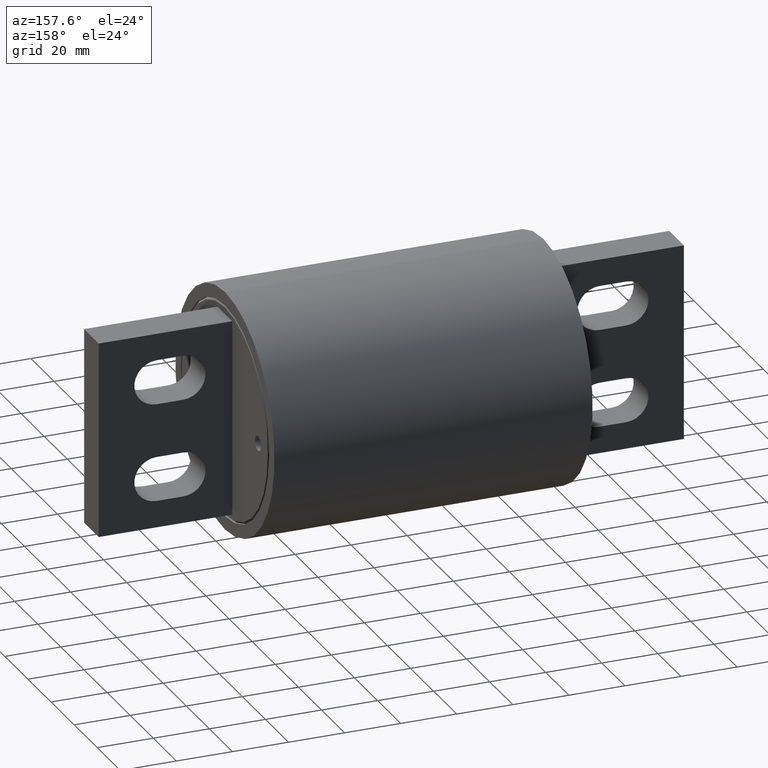
[diagram: clean part render]
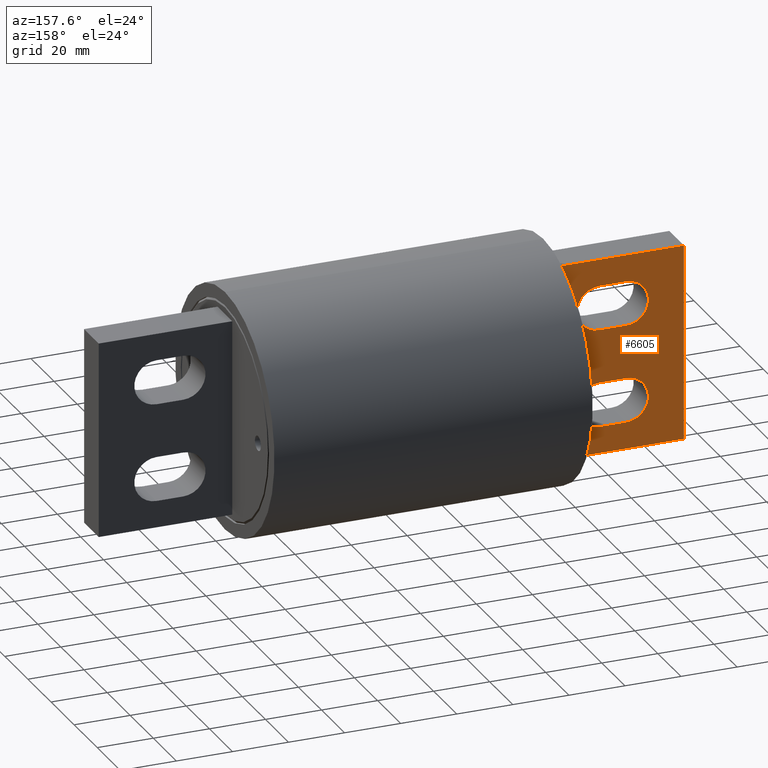
[diagram: same view with one face highlighted and labeled with its STEP entity id]
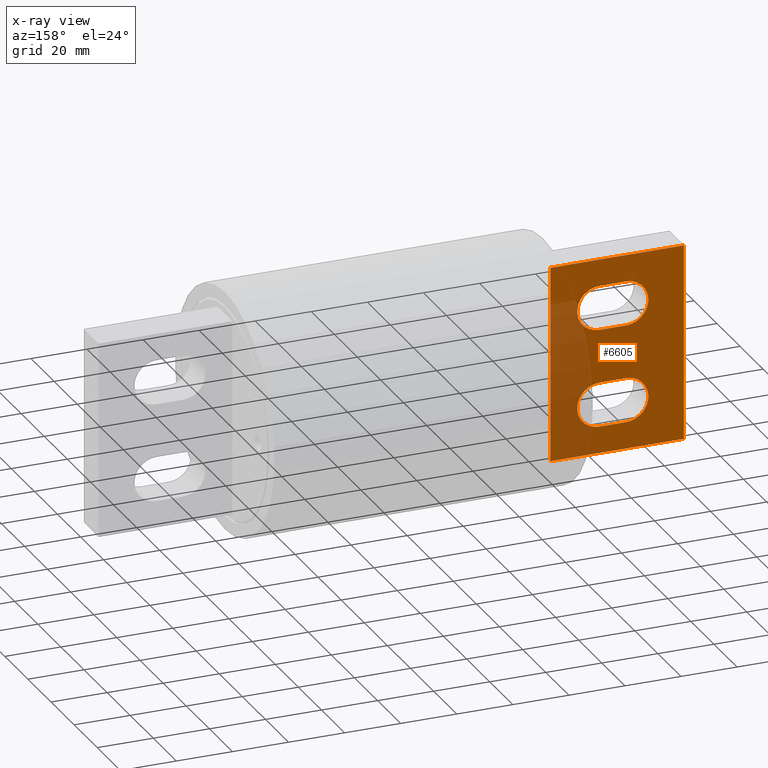
[diagram: x-ray of the same camera — body ghosted, the highlighted face saturated]
A machine part, auxiliary view. The second image highlights one B-rep face of the part: STEP entity #6605.
The next image is the same camera in x-ray: the body ghosted, the highlighted face saturated — about 26% of this face is hidden behind the body in this view.
In plain terms, the highlighted planar face has unit normal (-0, 1, 0).
Its self-contained STEP definition (entity closure, byte-faithful):
#44 = CARTESIAN_POINT ( 'NONE',  ( -2.922499999999998100, 0.2499999999999999200, 0.9999999999999992200 ) ) ;
#532 = DIRECTION ( 'NONE',  ( 7.360183935079494200E-017, -1.000000000000000000, -5.520159270106857000E-017 ) ) ;
#618 = ORIENTED_EDGE ( 'NONE', *, *, #1096, .T. ) ;
#1021 = CARTESIAN_POINT ( 'NONE',  ( -2.922499999999998100, 0.2499999999999999700, 0.6874999999999991100 ) ) ;
#1068 = CARTESIAN_POINT ( 'NONE',  ( -3.297499999999999400, 0.2500000000000001100, -0.6874999999999998900 ) ) ;
#1096 = EDGE_CURVE ( 'NONE', #7679, #12329, #7886, .T. ) ;
#1551 = VECTOR ( 'NONE', #13475, 39.37007874015748100 ) ;
#1594 = DIRECTION ( 'NONE',  ( 7.360183935079494200E-017, -1.000000000000000000, -5.520159270106857000E-017 ) ) ;
#1689 = CARTESIAN_POINT ( 'NONE',  ( -2.922499999999998100, 0.2499999999999999700, 0.3749999999999997800 ) ) ;
#1734 = ORIENTED_EDGE ( 'NONE', *, *, #8841, .T. ) ;
#1798 = AXIS2_PLACEMENT_3D ( 'NONE', #1068, #8775, #4246 ) ;
#1814 = DIRECTION ( 'NONE',  ( -8.790956814906570500E-017, 5.582070976144707800E-017, -1.000000000000000000 ) ) ;
#1819 = ORIENTED_EDGE ( 'NONE', *, *, #11486, .F. ) ;
#2226 = DIRECTION ( 'NONE',  ( -7.360183935079494200E-017, 1.000000000000000000, 5.582070976144709000E-017 ) ) ;
#2277 = VECTOR ( 'NONE', #12730, 39.37007874015748100 ) ;
#2658 = CARTESIAN_POINT ( 'NONE',  ( -2.922499999999998100, 0.2500000000000000600, -0.3749999999999995000 ) ) ;
#2750 = EDGE_CURVE ( 'NONE', #8360, #5628, #8156, .T. ) ;
#2774 = LINE ( 'NONE', #11304, #5850 ) ;
#2871 = CARTESIAN_POINT ( 'NONE',  ( -2.922499999999999400, 0.2500000000000000600, -0.9999999999999994400 ) ) ;
#2880 = VERTEX_POINT ( 'NONE', #6542 ) ;
#3252 = ORIENTED_EDGE ( 'NONE', *, *, #5344, .T. ) ;
#3484 = AXIS2_PLACEMENT_3D ( 'NONE', #11917, #1594, #8288 ) ;
#3885 = CARTESIAN_POINT ( 'NONE',  ( -2.922499999999998100, 0.2499999999999999200, 0.9999999999999992200 ) ) ;
#4175 = CIRCLE ( 'NONE', #7429, 0.3124999999999998300 ) ;
#4246 = DIRECTION ( 'NONE',  ( 0.0000000000000000000, -1.092739197465706400E-016, 1.000000000000000000 ) ) ;
#4419 = CARTESIAN_POINT ( 'NONE',  ( -3.297499999999998500, 0.2500000000000000600, 0.3749999999999996100 ) ) ;
#4558 = ORIENTED_EDGE ( 'NONE', *, *, #2750, .F. ) ;
#4561 = VECTOR ( 'NONE', #8090, 39.37007874015748100 ) ;
#4571 = AXIS2_PLACEMENT_3D ( 'NONE', #8568, #2226, #1814 ) ;
#4675 = CARTESIAN_POINT ( 'NONE',  ( -2.922499999999999400, 0.2500000000000000600, -0.6874999999999994400 ) ) ;
#4841 = EDGE_CURVE ( 'NONE', #9212, #2880, #10613, .T. ) ;
#4894 = VECTOR ( 'NONE', #5774, 39.37007874015748100 ) ;
#5084 = CARTESIAN_POINT ( 'NONE',  ( -3.297499999999999400, 0.2500000000000001100, -0.9999999999999998900 ) ) ;
#5288 = EDGE_CURVE ( 'NONE', #13664, #13404, #13290, .T. ) ;
#5344 = EDGE_CURVE ( 'NONE', #13404, #7679, #12941, .T. ) ;
#5417 = ORIENTED_EDGE ( 'NONE', *, *, #7838, .T. ) ;
#5425 = DIRECTION ( 'NONE',  ( 1.000000000000000000, -4.999400589604231500E-017, -5.701171636707238200E-016 ) ) ;
#5534 = CARTESIAN_POINT ( 'NONE',  ( -4.109499999999999700, 0.2500000000000000600, -1.374999999999998900 ) ) ;
#5628 = VERTEX_POINT ( 'NONE', #7086 ) ;
#5770 = LINE ( 'NONE', #2658, #4561 ) ;
#5774 = DIRECTION ( 'NONE',  ( 1.000000000000000000, -4.999400589604233900E-017, 8.552635480869926800E-017 ) ) ;
#5850 = VECTOR ( 'NONE', #13540, 39.37007874015748100 ) ;
#5926 = CARTESIAN_POINT ( 'NONE',  ( -4.109499999999997000, 0.2499999999999998900, 1.374999999999998200 ) ) ;
#5989 = EDGE_CURVE ( 'NONE', #10641, #9212, #12739, .T. ) ;
#6299 = EDGE_LOOP ( 'NONE', ( #8447, #4558, #1819, #8799 ) ) ;
#6322 = EDGE_CURVE ( 'NONE', #2880, #6853, #4175, .T. ) ;
#6463 = EDGE_LOOP ( 'NONE', ( #10374, #1734, #12357, #10643 ) ) ;
#6542 = CARTESIAN_POINT ( 'NONE',  ( -2.922499999999999400, 0.2500000000000000600, -0.9999999999999994400 ) ) ;
#6605 = ADVANCED_FACE ( 'NONE', ( #9786, #11353, #13400 ), #9521, .T. ) ;
#6853 = VERTEX_POINT ( 'NONE', #9145 ) ;
#7086 = CARTESIAN_POINT ( 'NONE',  ( -2.234499999999999700, 0.2500000000000000600, -1.374999999999998700 ) ) ;
#7111 = CARTESIAN_POINT ( 'NONE',  ( -2.234499999999999700, 0.2500000000000000600, -1.374999999999998700 ) ) ;
#7429 = AXIS2_PLACEMENT_3D ( 'NONE', #4675, #532, #11724 ) ;
#7679 = VERTEX_POINT ( 'NONE', #4419 ) ;
#7838 = EDGE_CURVE ( 'NONE', #12329, #13664, #12073, .T. ) ;
#7886 = LINE ( 'NONE', #1689, #13827 ) ;
#8090 = DIRECTION ( 'NONE',  ( -1.000000000000000000, 4.999400589604233900E-017, -1.583756346397462300E-016 ) ) ;
#8156 = LINE ( 'NONE', #7111, #4894 ) ;
#8164 = DIRECTION ( 'NONE',  ( 1.143035889327110600E-017, 5.582070976144709000E-017, -1.000000000000000000 ) ) ;
#8279 = CARTESIAN_POINT ( 'NONE',  ( -2.922499999999998100, 0.2499999999999999700, 0.3749999999999997800 ) ) ;
#8288 = DIRECTION ( 'NONE',  ( 0.0000000000000000000, 1.092739197465706400E-016, -1.000000000000000000 ) ) ;
#8301 = EDGE_CURVE ( 'NONE', #13778, #8755, #2774, .T. ) ;
#8343 = ORIENTED_EDGE ( 'NONE', *, *, #5288, .T. ) ;
#8360 = VERTEX_POINT ( 'NONE', #5534 ) ;
#8447 = ORIENTED_EDGE ( 'NONE', *, *, #10254, .F. ) ;
#8523 = AXIS2_PLACEMENT_3D ( 'NONE', #1021, #11205, #9848 ) ;
#8568 = CARTESIAN_POINT ( 'NONE',  ( -2.234499999999999700, 0.2500000000000000000, -2.593844011911592900E-016 ) ) ;
#8755 = VERTEX_POINT ( 'NONE', #5926 ) ;
#8775 = DIRECTION ( 'NONE',  ( 7.360183935079494200E-017, -1.000000000000000000, -5.520159270106857000E-017 ) ) ;
#8799 = ORIENTED_EDGE ( 'NONE', *, *, #8301, .F. ) ;
#8841 = EDGE_CURVE ( 'NONE', #6853, #10641, #5770, .T. ) ;
#9079 = CARTESIAN_POINT ( 'NONE',  ( -2.234499999999999300, 0.2499999999999999200, 1.374999999999998000 ) ) ;
#9145 = CARTESIAN_POINT ( 'NONE',  ( -2.922499999999998100, 0.2500000000000000600, -0.3749999999999995000 ) ) ;
#9212 = VERTEX_POINT ( 'NONE', #5084 ) ;
#9521 = PLANE ( 'NONE',  #4571 ) ;
#9582 = EDGE_LOOP ( 'NONE', ( #5417, #8343, #3252, #618 ) ) ;
#9786 = FACE_BOUND ( 'NONE', #9582, .T. ) ;
#9848 = DIRECTION ( 'NONE',  ( 0.0000000000000000000, 1.092739197465705900E-016, -1.000000000000000000 ) ) ;
#10254 = EDGE_CURVE ( 'NONE', #5628, #13778, #10471, .T. ) ;
#10374 = ORIENTED_EDGE ( 'NONE', *, *, #6322, .T. ) ;
#10405 = CARTESIAN_POINT ( 'NONE',  ( -4.109499999999997000, 0.2499999999999998900, 1.374999999999998200 ) ) ;
#10471 = LINE ( 'NONE', #9079, #1551 ) ;
#10613 = LINE ( 'NONE', #2871, #13163 ) ;
#10626 = CARTESIAN_POINT ( 'NONE',  ( -3.297499999999998500, 0.2500000000000001100, -0.3749999999999997800 ) ) ;
#10641 = VERTEX_POINT ( 'NONE', #10626 ) ;
#10643 = ORIENTED_EDGE ( 'NONE', *, *, #4841, .T. ) ;
#10844 = CARTESIAN_POINT ( 'NONE',  ( -3.297499999999998500, 0.2500000000000000000, 0.9999999999999984500 ) ) ;
#11205 = DIRECTION ( 'NONE',  ( 7.360183935079494200E-017, -1.000000000000000000, -5.520159270106857000E-017 ) ) ;
#11240 = VECTOR ( 'NONE', #8164, 39.37007874015748100 ) ;
#11304 = CARTESIAN_POINT ( 'NONE',  ( -2.234499999999999300, 0.2499999999999999200, 1.374999999999998000 ) ) ;
#11353 = FACE_BOUND ( 'NONE', #6463, .T. ) ;
#11486 = EDGE_CURVE ( 'NONE', #8755, #8360, #12064, .T. ) ;
#11708 = CARTESIAN_POINT ( 'NONE',  ( -2.234499999999999300, 0.2499999999999999200, 1.374999999999998000 ) ) ;
#11724 = DIRECTION ( 'NONE',  ( 0.0000000000000000000, -1.092739197465705900E-016, 1.000000000000000000 ) ) ;
#11917 = CARTESIAN_POINT ( 'NONE',  ( -3.297499999999998500, 0.2500000000000000600, 0.6874999999999984500 ) ) ;
#12064 = LINE ( 'NONE', #10405, #11240 ) ;
#12073 = CIRCLE ( 'NONE', #8523, 0.3124999999999998300 ) ;
#12329 = VERTEX_POINT ( 'NONE', #8279 ) ;
#12357 = ORIENTED_EDGE ( 'NONE', *, *, #5989, .T. ) ;
#12730 = DIRECTION ( 'NONE',  ( -1.000000000000000000, 4.999400589604233900E-017, -1.583756346397462300E-016 ) ) ;
#12739 = CIRCLE ( 'NONE', #1798, 0.3124999999999996700 ) ;
#12941 = CIRCLE ( 'NONE', #3484, 0.3124999999999996700 ) ;
#13163 = VECTOR ( 'NONE', #5425, 39.37007874015748100 ) ;
#13290 = LINE ( 'NONE', #44, #2277 ) ;
#13400 = FACE_OUTER_BOUND ( 'NONE', #6299, .T. ) ;
#13404 = VERTEX_POINT ( 'NONE', #10844 ) ;
#13475 = DIRECTION ( 'NONE',  ( -3.455511176566955400E-017, -5.582070976144709000E-017, 1.000000000000000000 ) ) ;
#13540 = DIRECTION ( 'NONE',  ( -1.000000000000000000, 4.999400589604233900E-017, 2.058707645154888000E-016 ) ) ;
#13664 = VERTEX_POINT ( 'NONE', #3885 ) ;
#13778 = VERTEX_POINT ( 'NONE', #11708 ) ;
#13827 = VECTOR ( 'NONE', #14282, 39.37007874015748100 ) ;
#14282 = DIRECTION ( 'NONE',  ( 1.000000000000000000, -4.999400589604231500E-017, -5.701171636707238200E-016 ) ) ;